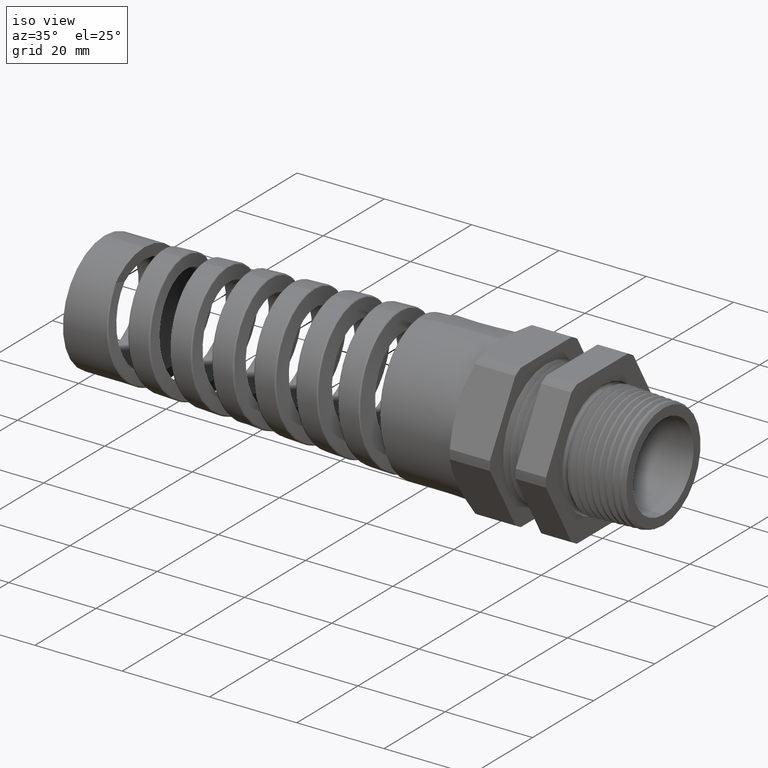
[diagram: clean part render]
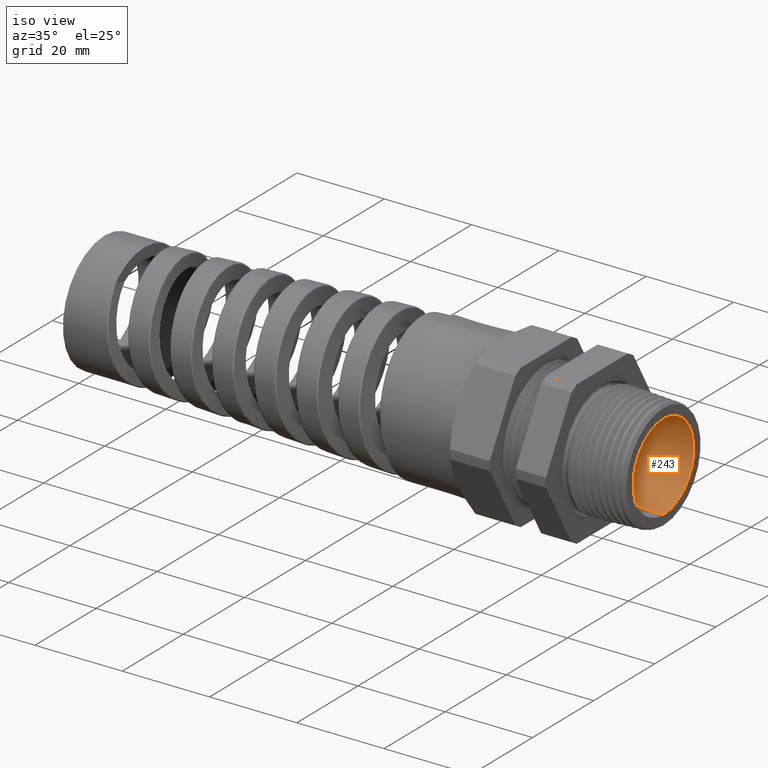
[diagram: same view with one face highlighted and labeled with its STEP entity id]
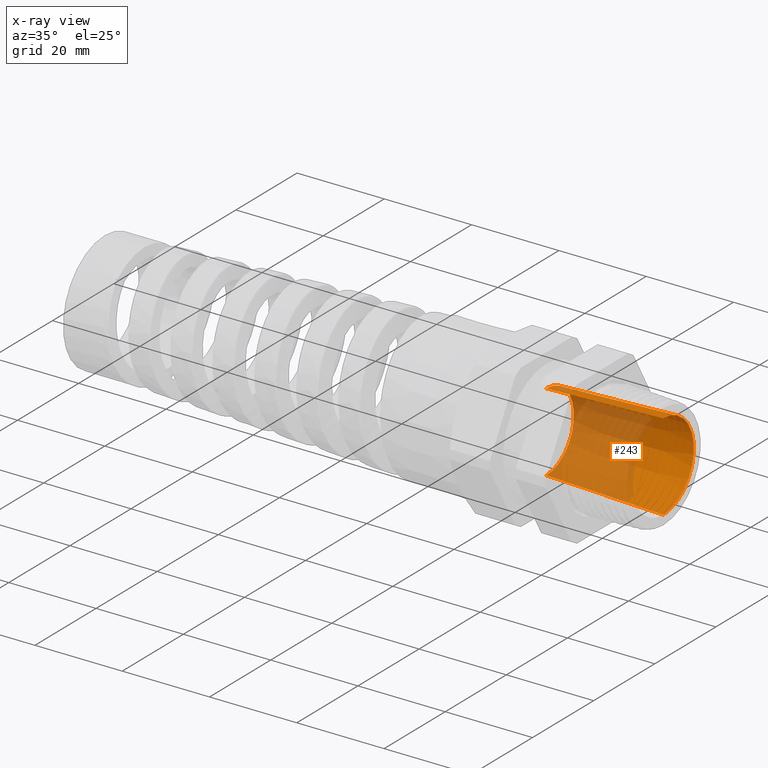
[diagram: x-ray of the same camera — body ghosted, the highlighted face saturated]
A machine part, iso view. The second image highlights one B-rep face of the part: STEP entity #243.
The next image is the same camera in x-ray: the body ghosted, the highlighted face saturated — about 56% of this face is hidden behind the body in this view.
In plain terms, the highlighted conical surface has half-angle 2 deg.
Its self-contained STEP definition (entity closure, byte-faithful):
#171 = ORIENTED_EDGE ( 'NONE', *, *, #249, .T. ) ;
#172 = ORIENTED_EDGE ( 'NONE', *, *, #744, .F. ) ;
#202 = EDGE_LOOP ( 'NONE', ( #172, #171, #223, #227 ) ) ;
#219 = EDGE_CURVE ( 'NONE', #664, #451, #1336, .T. ) ;
#223 = ORIENTED_EDGE ( 'NONE', *, *, #453, .T. ) ;
#227 = ORIENTED_EDGE ( 'NONE', *, *, #219, .F. ) ;
#243 = ADVANCED_FACE ( 'NONE', ( #1386 ), #1385, .F. ) ;
#249 = EDGE_CURVE ( 'NONE', #742, #741, #1374, .T. ) ;
#451 = VERTEX_POINT ( 'NONE', #1723 ) ;
#453 = EDGE_CURVE ( 'NONE', #741, #451, #1722, .T. ) ;
#664 = VERTEX_POINT ( 'NONE', #2136 ) ;
#741 = VERTEX_POINT ( 'NONE', #6728 ) ;
#742 = VERTEX_POINT ( 'NONE', #6727 ) ;
#744 = EDGE_CURVE ( 'NONE', #742, #664, #6726, .T. ) ;
#1333 = DIRECTION ( 'NONE',  ( 0.0000000000000000000, 0.0000000000000000000, 1.000000000000000000 ) ) ;
#1334 = DIRECTION ( 'NONE',  ( -1.000000000000000000, 0.0000000000000000000, 0.0000000000000000000 ) ) ;
#1335 = AXIS2_PLACEMENT_3D ( 'NONE', #1342, #1334, #1333 ) ;
#1336 = CIRCLE ( 'NONE', #1335, 0.3918705124550377300 ) ;
#1342 = CARTESIAN_POINT ( 'NONE',  ( 0.5500000000000001600, 0.0000000000000000000, 0.0000000000000000000 ) ) ;
#1370 = DIRECTION ( 'NONE',  ( 0.0000000000000000000, 0.0000000000000000000, 1.000000000000000000 ) ) ;
#1371 = DIRECTION ( 'NONE',  ( -1.000000000000000000, 0.0000000000000000000, 0.0000000000000000000 ) ) ;
#1372 = CARTESIAN_POINT ( 'NONE',  ( -0.5058333333333334700, 0.0000000000000000000, 0.0000000000000000000 ) ) ;
#1373 = AXIS2_PLACEMENT_3D ( 'NONE', #1372, #1371, #1370 ) ;
#1374 = CIRCLE ( 'NONE', #1373, 0.3549999999999999800 ) ;
#1380 = DIRECTION ( 'NONE',  ( 0.0000000000000000000, 0.0000000000000000000, -1.000000000000000000 ) ) ;
#1381 = DIRECTION ( 'NONE',  ( 1.000000000000000000, 0.0000000000000000000, 0.0000000000000000000 ) ) ;
#1382 = CARTESIAN_POINT ( 'NONE',  ( -0.5058333333333334700, 0.0000000000000000000, 0.0000000000000000000 ) ) ;
#1383 = AXIS2_PLACEMENT_3D ( 'NONE', #1382, #1381, #1380 ) ;
#1385 = CONICAL_SURFACE ( 'NONE', #1383, 0.3549999999999999800, 0.03490658503988733300 ) ;
#1386 = FACE_OUTER_BOUND ( 'NONE', #202, .T. ) ;
#1719 = DIRECTION ( 'NONE',  ( 0.9993908270190957600, 0.0000000000000000000, -0.03489949670250171200 ) ) ;
#1720 = VECTOR ( 'NONE', #1719, 39.37007874015748900 ) ;
#1721 = CARTESIAN_POINT ( 'NONE',  ( -0.5058333333333334700, 0.0000000000000000000, -0.3549999999999999800 ) ) ;
#1722 = LINE ( 'NONE', #1721, #1720 ) ;
#1723 = CARTESIAN_POINT ( 'NONE',  ( 0.5500000000000001600, 0.0000000000000000000, -0.3918705124550377300 ) ) ;
#2136 = CARTESIAN_POINT ( 'NONE',  ( 0.5500000000000001600, 4.799029687582950000E-017, 0.3918705124550377300 ) ) ;
#6723 = DIRECTION ( 'NONE',  ( 0.9993908270190957600, 4.273955692857232700E-018, 0.03489949670250171200 ) ) ;
#6724 = VECTOR ( 'NONE', #6723, 39.37007874015748900 ) ;
#6725 = CARTESIAN_POINT ( 'NONE',  ( -0.5058333333333334700, 4.347496136973103500E-017, 0.3549999999999999800 ) ) ;
#6726 = LINE ( 'NONE', #6725, #6724 ) ;
#6727 = CARTESIAN_POINT ( 'NONE',  ( -0.5058333333333334700, 0.0000000000000000000, 0.3549999999999999800 ) ) ;
#6728 = CARTESIAN_POINT ( 'NONE',  ( -0.5058333333333334700, 4.347496136973103500E-017, -0.3549999999999999800 ) ) ;